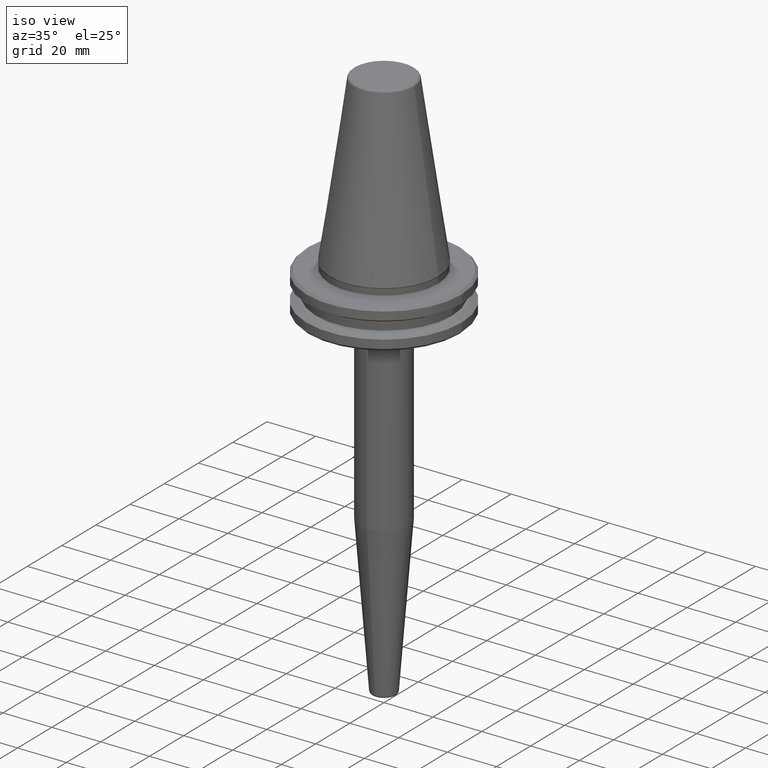
[diagram: clean part render]
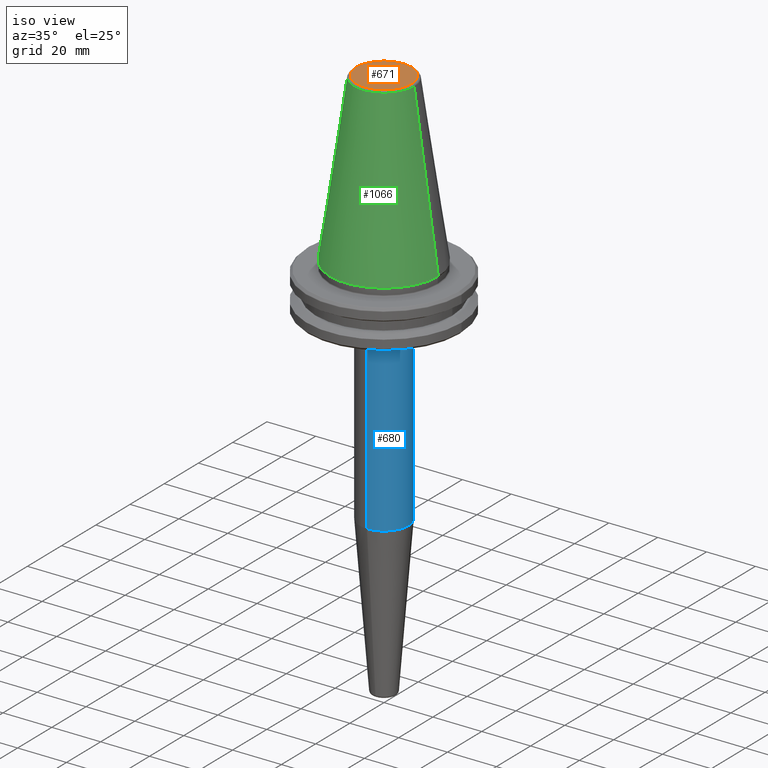
[diagram: same view with three faces highlighted in distinct colors, each labeled with its STEP entity id]
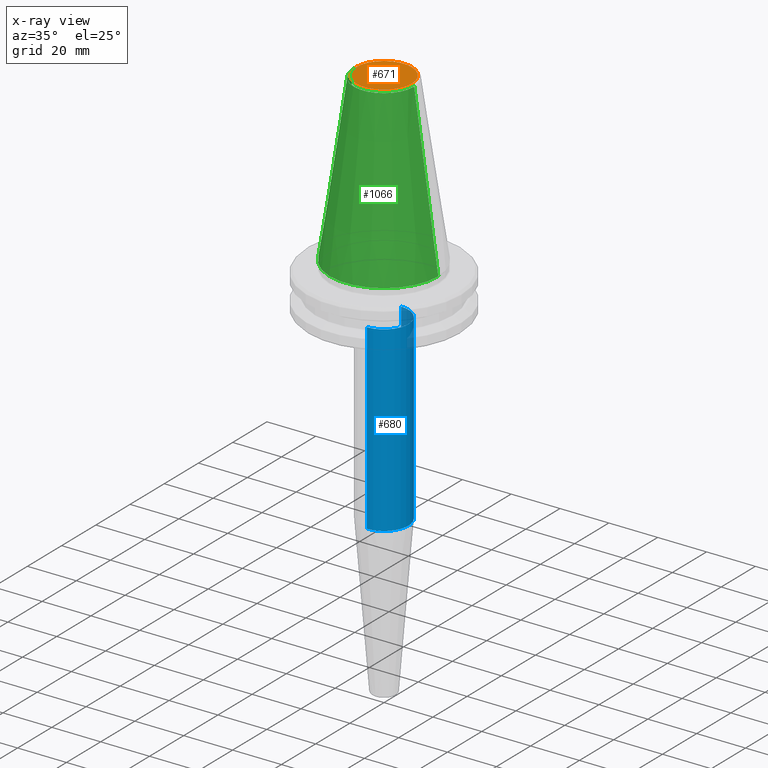
[diagram: x-ray of the same camera — body ghosted, the three highlighted faces saturated]
A machine part, iso view with three faces highlighted in distinct colors.
The next image is the same camera in x-ray (body ghosted, the three faces saturated) — at least one of them is partly hidden behind the body in this view.
Their STEP definitions:

[orange] entity #671 — the highlighted planar face has unit normal (0, -0, 1).
#100 = CIRCLE ( 'NONE', #282, 11.38516258961893100 ) ;
#173 = ORIENTED_EDGE ( 'NONE', *, *, #400, .T. ) ;
#186 = ORIENTED_EDGE ( 'NONE', *, *, #746, .T. ) ;
#251 = DIRECTION ( 'NONE',  ( -0.0000000000000000000, -0.0000000000000000000, 1.000000000000000000 ) ) ;
#268 = CIRCLE ( 'NONE', #864, 11.38516258961893100 ) ;
#276 = DIRECTION ( 'NONE',  ( 0.0000000000000000000, -0.0000000000000000000, 1.000000000000000000 ) ) ;
#282 = AXIS2_PLACEMENT_3D ( 'NONE', #1148, #573, #1253 ) ;
#400 = EDGE_CURVE ( 'NONE', #415, #835, #268, .T. ) ;
#410 = AXIS2_PLACEMENT_3D ( 'NONE', #848, #276, #939 ) ;
#415 = VERTEX_POINT ( 'NONE', #1105 ) ;
#484 = CARTESIAN_POINT ( 'NONE',  ( -11.38516258961893100, 1.454871700296352000E-015, 68.40000000000000600 ) ) ;
#563 = EDGE_LOOP ( 'NONE', ( #173, #186 ) ) ;
#573 = DIRECTION ( 'NONE',  ( -0.0000000000000000000, -0.0000000000000000000, 1.000000000000000000 ) ) ;
#653 = PLANE ( 'NONE',  #410 ) ;
#671 = ADVANCED_FACE ( 'NONE', ( #1150 ), #653, .T. ) ;
#703 = CARTESIAN_POINT ( 'NONE',  ( 0.0000000000000000000, 0.0000000000000000000, 68.40000000000000600 ) ) ;
#746 = EDGE_CURVE ( 'NONE', #835, #415, #100, .T. ) ;
#835 = VERTEX_POINT ( 'NONE', #484 ) ;
#848 = CARTESIAN_POINT ( 'NONE',  ( 0.0000000000000000000, -8.337524199435086500E-014, 68.39999999999999100 ) ) ;
#864 = AXIS2_PLACEMENT_3D ( 'NONE', #703, #251, #1217 ) ;
#939 = DIRECTION ( 'NONE',  ( 1.000000000000000000, 0.0000000000000000000, 0.0000000000000000000 ) ) ;
#1105 = CARTESIAN_POINT ( 'NONE',  ( 11.38516258961893100, 0.0000000000000000000, 68.40000000000000600 ) ) ;
#1148 = CARTESIAN_POINT ( 'NONE',  ( 0.0000000000000000000, 0.0000000000000000000, 68.40000000000000600 ) ) ;
#1150 = FACE_OUTER_BOUND ( 'NONE', #563, .T. ) ;
#1217 = DIRECTION ( 'NONE',  ( 1.000000000000000000, 0.0000000000000000000, 0.0000000000000000000 ) ) ;
#1253 = DIRECTION ( 'NONE',  ( 1.000000000000000000, 0.0000000000000000000, 0.0000000000000000000 ) ) ;

[blue] entity #680 — the highlighted cylindrical surface (edge-blend (fillet) strip) has radius 10 mm, axis along (-0, 0, -1).
#44 = CIRCLE ( 'NONE', #155, 10.00000000000000900 ) ;
#48 = AXIS2_PLACEMENT_3D ( 'NONE', #368, #1034, #560 ) ;
#54 = VERTEX_POINT ( 'NONE', #1194 ) ;
#59 = CARTESIAN_POINT ( 'NONE',  ( 0.0000000000000000000, -1.701835490922485000E-014, -20.98284271247460700 ) ) ;
#67 = EDGE_CURVE ( 'NONE', #314, #472, #903, .T. ) ;
#70 = AXIS2_PLACEMENT_3D ( 'NONE', #59, #1107, #1007 ) ;
#84 = EDGE_CURVE ( 'NONE', #472, #995, #359, .T. ) ;
#105 = VECTOR ( 'NONE', #912, 1000.000000000000000 ) ;
#121 = EDGE_CURVE ( 'NONE', #54, #995, #44, .T. ) ;
#122 = DIRECTION ( 'NONE',  ( 0.0000000000000000000, 1.000000000000000000, 0.0000000000000000000 ) ) ;
#128 = CARTESIAN_POINT ( 'NONE',  ( 0.0000000000000000000, -7.650576942557227800E-015, -95.54743541484747000 ) ) ;
#155 = AXIS2_PLACEMENT_3D ( 'NONE', #128, #507, #122 ) ;
#252 = CARTESIAN_POINT ( 'NONE',  ( 1.224646799147354600E-015, -10.00000000000001200, -160.0000000000000000 ) ) ;
#314 = VERTEX_POINT ( 'NONE', #857 ) ;
#359 = LINE ( 'NONE', #252, #105 ) ;
#368 = CARTESIAN_POINT ( 'NONE',  ( 0.0000000000000000000, 4.467959865220142400E-016, -160.0000000000000000 ) ) ;
#411 = ORIENTED_EDGE ( 'NONE', *, *, #84, .T. ) ;
#431 = CARTESIAN_POINT ( 'NONE',  ( 0.0000000000000000000, 10.00000000000001200, -160.0000000000000000 ) ) ;
#472 = VERTEX_POINT ( 'NONE', #724 ) ;
#507 = DIRECTION ( 'NONE',  ( -0.0000000000000000000, 1.256330602389183300E-016, -1.000000000000000000 ) ) ;
#532 = VECTOR ( 'NONE', #1096, 1000.000000000000000 ) ;
#560 = DIRECTION ( 'NONE',  ( 0.0000000000000000000, 1.000000000000000000, 0.0000000000000000000 ) ) ;
#646 = ORIENTED_EDGE ( 'NONE', *, *, #67, .T. ) ;
#660 = CARTESIAN_POINT ( 'NONE',  ( 0.0000000000000000000, -10.00000000000001600, -95.54743541484747000 ) ) ;
#680 = ADVANCED_FACE ( 'NONE', ( #898 ), #862, .T. ) ;
#724 = CARTESIAN_POINT ( 'NONE',  ( 1.224646799147355800E-015, -10.00000000000003400, -20.98284271247460700 ) ) ;
#822 = ORIENTED_EDGE ( 'NONE', *, *, #121, .F. ) ;
#857 = CARTESIAN_POINT ( 'NONE',  ( 0.0000000000000000000, 9.999999999999998200, -20.98284271247460700 ) ) ;
#862 = CYLINDRICAL_SURFACE ( 'NONE', #48, 10.00000000000001200 ) ;
#875 = ORIENTED_EDGE ( 'NONE', *, *, #1165, .F. ) ;
#898 = FACE_OUTER_BOUND ( 'NONE', #1052, .T. ) ;
#903 = CIRCLE ( 'NONE', #70, 10.00000000000001600 ) ;
#912 = DIRECTION ( 'NONE',  ( -0.0000000000000000000, 1.256330602389183300E-016, -1.000000000000000000 ) ) ;
#995 = VERTEX_POINT ( 'NONE', #660 ) ;
#1007 = DIRECTION ( 'NONE',  ( 0.0000000000000000000, 1.000000000000000000, 0.0000000000000000000 ) ) ;
#1028 = LINE ( 'NONE', #431, #532 ) ;
#1034 = DIRECTION ( 'NONE',  ( -0.0000000000000000000, 1.256330602389183300E-016, -1.000000000000000000 ) ) ;
#1052 = EDGE_LOOP ( 'NONE', ( #646, #411, #822, #875 ) ) ;
#1096 = DIRECTION ( 'NONE',  ( -0.0000000000000000000, 1.256330602389183300E-016, -1.000000000000000000 ) ) ;
#1107 = DIRECTION ( 'NONE',  ( -0.0000000000000000000, 1.256330602389183300E-016, -1.000000000000000000 ) ) ;
#1165 = EDGE_CURVE ( 'NONE', #314, #54, #1028, .T. ) ;
#1194 = CARTESIAN_POINT ( 'NONE',  ( 1.224646799147354200E-015, 10.00000000000000200, -95.54743541484747000 ) ) ;

[green] entity #1066 — the highlighted conical surface has half-angle 8.297 deg.
#38 = AXIS2_PLACEMENT_3D ( 'NONE', #576, #673, #317 ) ;
#46 = DIRECTION ( 'NONE',  ( -0.0000000000000000000, -0.0000000000000000000, 1.000000000000000000 ) ) ;
#73 = VECTOR ( 'NONE', #635, 1000.000000000000000 ) ;
#79 = AXIS2_PLACEMENT_3D ( 'NONE', #626, #46, #721 ) ;
#87 = CARTESIAN_POINT ( 'NONE',  ( 12.37469537611110800, 1.515463108277802100E-015, 67.54430822726729400 ) ) ;
#111 = EDGE_CURVE ( 'NONE', #705, #1227, #618, .T. ) ;
#177 = EDGE_LOOP ( 'NONE', ( #356, #1089, #1246, #766 ) ) ;
#220 = CARTESIAN_POINT ( 'NONE',  ( 22.22500000000000500, 0.0000000000000000000, 0.0000000000000000000 ) ) ;
#229 = VERTEX_POINT ( 'NONE', #220 ) ;
#284 = CONICAL_SURFACE ( 'NONE', #38, 12.37469537611110800, 0.1448138465474191100 ) ;
#303 = CARTESIAN_POINT ( 'NONE',  ( 0.0000000000000000000, 0.0000000000000000000, 67.54430822726729400 ) ) ;
#309 = EDGE_CURVE ( 'NONE', #705, #921, #581, .T. ) ;
#317 = DIRECTION ( 'NONE',  ( -1.000000000000000000, 0.0000000000000000000, 0.0000000000000000000 ) ) ;
#321 = EDGE_CURVE ( 'NONE', #921, #229, #1059, .T. ) ;
#356 = ORIENTED_EDGE ( 'NONE', *, *, #321, .F. ) ;
#387 = DIRECTION ( 'NONE',  ( 1.000000000000000000, 0.0000000000000000000, 0.0000000000000000000 ) ) ;
#478 = CARTESIAN_POINT ( 'NONE',  ( -12.37469537611110800, 0.0000000000000000000, 67.54430822726729400 ) ) ;
#481 = DIRECTION ( 'NONE',  ( -0.0000000000000000000, -0.0000000000000000000, 1.000000000000000000 ) ) ;
#528 = CARTESIAN_POINT ( 'NONE',  ( -22.22500000000000500, 2.721777511104993200E-015, 0.0000000000000000000 ) ) ;
#567 = EDGE_CURVE ( 'NONE', #1227, #229, #885, .T. ) ;
#576 = CARTESIAN_POINT ( 'NONE',  ( 0.0000000000000000000, 0.0000000000000000000, 67.54430822726729400 ) ) ;
#581 = CIRCLE ( 'NONE', #992, 12.37469537611110800 ) ;
#618 = LINE ( 'NONE', #817, #73 ) ;
#626 = CARTESIAN_POINT ( 'NONE',  ( 0.0000000000000000000, 0.0000000000000000000, 0.0000000000000000000 ) ) ;
#635 = DIRECTION ( 'NONE',  ( -0.1443082272673071000, 0.0000000000000000000, -0.9895327864921743500 ) ) ;
#673 = DIRECTION ( 'NONE',  ( 0.0000000000000000000, 0.0000000000000000000, -1.000000000000000000 ) ) ;
#705 = VERTEX_POINT ( 'NONE', #478 ) ;
#721 = DIRECTION ( 'NONE',  ( 1.000000000000000000, 0.0000000000000000000, 0.0000000000000000000 ) ) ;
#766 = ORIENTED_EDGE ( 'NONE', *, *, #567, .T. ) ;
#813 = VECTOR ( 'NONE', #959, 1000.000000000000000 ) ;
#817 = CARTESIAN_POINT ( 'NONE',  ( -12.37469537611110800, 0.0000000000000000000, 67.54430822726729400 ) ) ;
#885 = CIRCLE ( 'NONE', #79, 22.22500000000000500 ) ;
#921 = VERTEX_POINT ( 'NONE', #934 ) ;
#934 = CARTESIAN_POINT ( 'NONE',  ( 12.37469537611110800, 2.118620309691397700E-015, 67.54430822726729400 ) ) ;
#959 = DIRECTION ( 'NONE',  ( 0.1443082272673071000, 1.767266086135364600E-017, -0.9895327864921743500 ) ) ;
#992 = AXIS2_PLACEMENT_3D ( 'NONE', #303, #481, #387 ) ;
#1059 = LINE ( 'NONE', #87, #813 ) ;
#1066 = ADVANCED_FACE ( 'NONE', ( #1080 ), #284, .T. ) ;
#1080 = FACE_OUTER_BOUND ( 'NONE', #177, .T. ) ;
#1089 = ORIENTED_EDGE ( 'NONE', *, *, #309, .F. ) ;
#1227 = VERTEX_POINT ( 'NONE', #528 ) ;
#1246 = ORIENTED_EDGE ( 'NONE', *, *, #111, .T. ) ;